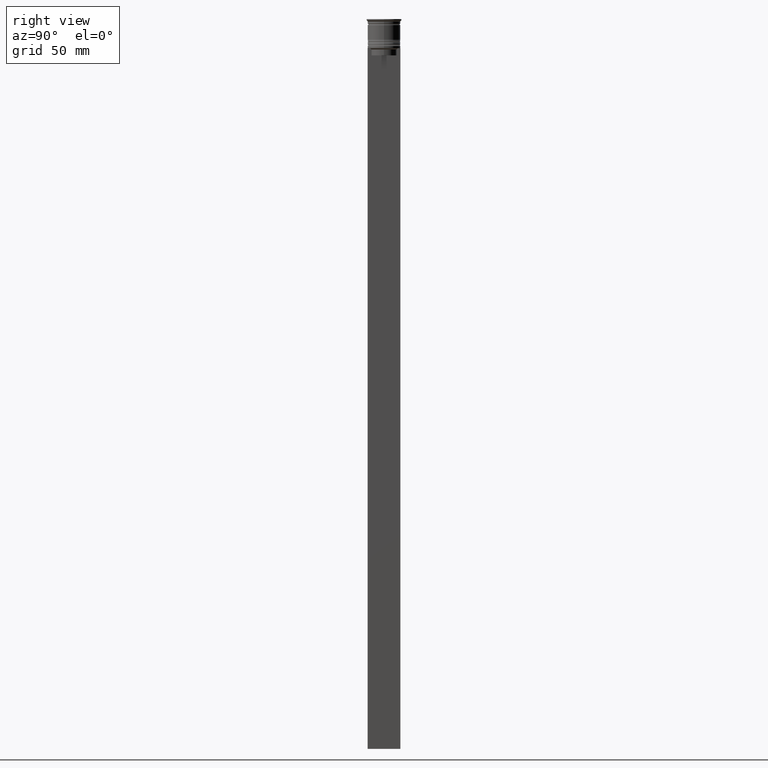
[diagram: clean part render]
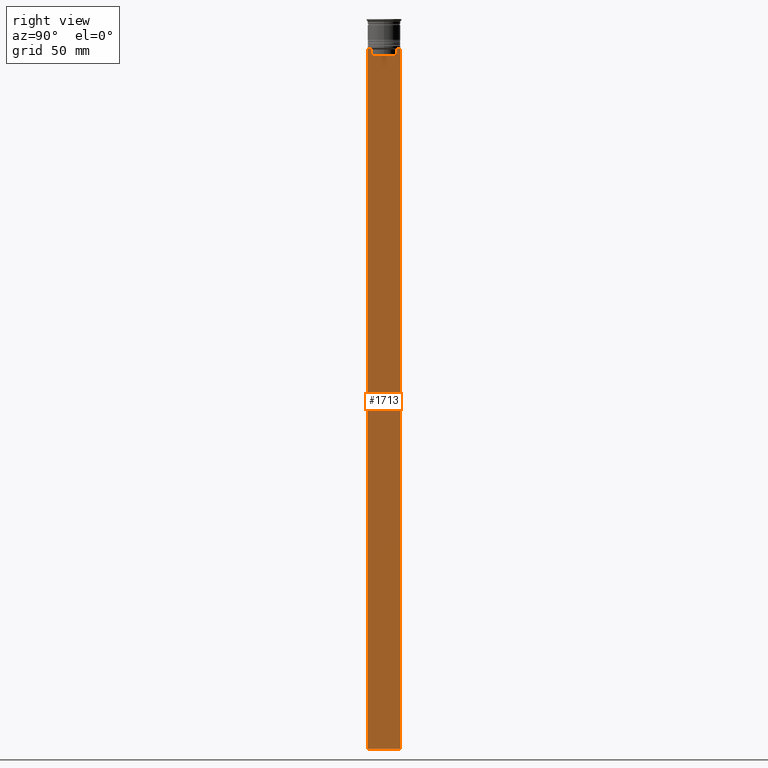
[diagram: same view with one face highlighted and labeled with its STEP entity id]
A machine part, right view. The second image highlights one B-rep face of the part: STEP entity #1713.
In plain terms, the highlighted planar face has unit normal (-1, 0, 0).
Its self-contained STEP definition (entity closure, byte-faithful):
#8 = EDGE_CURVE ( 'NONE', #275, #545, #1284, .T. ) ;
#13 = VECTOR ( 'NONE', #2017, 1000.000000000000000 ) ;
#97 = EDGE_LOOP ( 'NONE', ( #139, #2367, #1244, #529, #1843, #1959, #883, #535, #152, #282, #1002, #789 ) ) ;
#117 = DIRECTION ( 'NONE',  ( -1.000000000000000000, 0.000000000000000000, 0.000000000000000000 ) ) ;
#123 = DIRECTION ( 'NONE',  ( 0.000000000000000000, 0.000000000000000000, -1.000000000000000000 ) ) ;
#139 = ORIENTED_EDGE ( 'NONE', *, *, #1006, .T. ) ;
#148 = LINE ( 'NONE', #2223, #13 ) ;
#152 = ORIENTED_EDGE ( 'NONE', *, *, #504, .T. ) ;
#176 = LINE ( 'NONE', #1281, #345 ) ;
#187 = CARTESIAN_POINT ( 'NONE',  ( 0.5000000000000000000, -6.999999999999997335, -12.50000000000000000 ) ) ;
#197 = CARTESIAN_POINT ( 'NONE',  ( 0.5000000000000000000, -6.999999999999997335, -12.50000000000000000 ) ) ;
#222 = DIRECTION ( 'NONE',  ( 0.000000000000000000, -1.000000000000000000, 0.000000000000000000 ) ) ;
#230 = VERTEX_POINT ( 'NONE', #996 ) ;
#275 = VERTEX_POINT ( 'NONE', #1398 ) ;
#282 = ORIENTED_EDGE ( 'NONE', *, *, #1527, .T. ) ;
#345 = VECTOR ( 'NONE', #2247, 1000.000000000000000 ) ;
#355 = DIRECTION ( 'NONE',  ( 0.000000000000000000, -1.000000000000000000, 0.000000000000000000 ) ) ;
#482 = EDGE_CURVE ( 'NONE', #2055, #2200, #148, .T. ) ;
#497 = CARTESIAN_POINT ( 'NONE',  ( 0.5000000000000000000, 5.376802023508029826, 0.000000000000000000 ) ) ;
#504 = EDGE_CURVE ( 'NONE', #1763, #1091, #2240, .T. ) ;
#529 = ORIENTED_EDGE ( 'NONE', *, *, #574, .T. ) ;
#535 = ORIENTED_EDGE ( 'NONE', *, *, #1765, .T. ) ;
#545 = VERTEX_POINT ( 'NONE', #903 ) ;
#574 = EDGE_CURVE ( 'NONE', #545, #1770, #2417, .T. ) ;
#577 = CARTESIAN_POINT ( 'NONE',  ( 0.5000000000000000000, -5.878775382679629402, -12.50000000000000000 ) ) ;
#637 = DIRECTION ( 'NONE',  ( 0.000000000000000000, -1.000000000000000000, 0.000000000000000000 ) ) ;
#683 = CARTESIAN_POINT ( 'NONE',  ( 0.5000000000000000000, -6.999999999999997335, -312.5000000000000000 ) ) ;
#778 = LINE ( 'NONE', #197, #2478 ) ;
#786 = LINE ( 'NONE', #1744, #2034 ) ;
#789 = ORIENTED_EDGE ( 'NONE', *, *, #482, .T. ) ;
#850 = EDGE_CURVE ( 'NONE', #230, #275, #2285, .T. ) ;
#877 = DIRECTION ( 'NONE',  ( 0.000000000000000000, 0.000000000000000000, -1.000000000000000000 ) ) ;
#883 = ORIENTED_EDGE ( 'NONE', *, *, #1292, .T. ) ;
#903 = CARTESIAN_POINT ( 'NONE',  ( 0.5000000000000000000, 5.376802023508029826, -15.50000000000000000 ) ) ;
#931 = CARTESIAN_POINT ( 'NONE',  ( 0.5000000000000000000, -5.376802023508029826, 0.000000000000000000 ) ) ;
#968 = CARTESIAN_POINT ( 'NONE',  ( 0.5000000000000000000, -6.881860213634102053, -12.50000000000000000 ) ) ;
#996 = CARTESIAN_POINT ( 'NONE',  ( 0.5000000000000000000, 5.878775382679629402, -12.50000000000000000 ) ) ;
#999 = CARTESIAN_POINT ( 'NONE',  ( 0.5000000000000000000, 5.711478846560141598, -12.66669470477064685 ) ) ;
#1002 = ORIENTED_EDGE ( 'NONE', *, *, #1913, .F. ) ;
#1006 = EDGE_CURVE ( 'NONE', #2200, #230, #1403, .T. ) ;
#1032 = LINE ( 'NONE', #1631, #1383 ) ;
#1091 = VERTEX_POINT ( 'NONE', #683 ) ;
#1095 = PLANE ( 'NONE',  #1987 ) ;
#1107 = VECTOR ( 'NONE', #637, 1000.000000000000000 ) ;
#1109 = DIRECTION ( 'NONE',  ( 0.000000000000000000, 0.000000000000000000, 1.000000000000000000 ) ) ;
#1178 = VECTOR ( 'NONE', #877, 1000.000000000000000 ) ;
#1213 = CARTESIAN_POINT ( 'NONE',  ( 0.5000000000000000000, 5.376802023508029826, -13.00000000000000178 ) ) ;
#1244 = ORIENTED_EDGE ( 'NONE', *, *, #8, .T. ) ;
#1281 = CARTESIAN_POINT ( 'NONE',  ( 0.5000000000000000000, -6.999999999999997335, -12.50000000000000000 ) ) ;
#1284 = LINE ( 'NONE', #497, #1178 ) ;
#1288 = CARTESIAN_POINT ( 'NONE',  ( 0.5000000000000000000, 5.400000000000003908, -15.50000000000000000 ) ) ;
#1290 = CARTESIAN_POINT ( 'NONE',  ( 0.5000000000000000000, -6.999999999999997335, 1.535668847618198329 ) ) ;
#1292 = EDGE_CURVE ( 'NONE', #1809, #1961, #176, .T. ) ;
#1322 = FACE_OUTER_BOUND ( 'NONE', #97, .T. ) ;
#1332 = DIRECTION ( 'NONE',  ( 0.000000000000000000, 0.000000000000000000, -1.000000000000000000 ) ) ;
#1383 = VECTOR ( 'NONE', #2368, 1000.000000000000000 ) ;
#1398 = CARTESIAN_POINT ( 'NONE',  ( 0.5000000000000000000, 5.376802023508029826, -13.00000000000000178 ) ) ;
#1403 = LINE ( 'NONE', #2365, #1107 ) ;
#1488 = DIRECTION ( 'NONE',  ( -0.000000000000000000, -0.000000000000000000, 1.000000000000000000 ) ) ;
#1503 = VECTOR ( 'NONE', #355, 1000.000000000000000 ) ;
#1527 = EDGE_CURVE ( 'NONE', #1091, #1847, #1032, .T. ) ;
#1553 = CARTESIAN_POINT ( 'NONE',  ( 0.5000000000000000000, -5.376802023508029826, -13.00000000000000178 ) ) ;
#1631 = CARTESIAN_POINT ( 'NONE',  ( 0.5000000000000000000, -6.999999999999997335, -312.5000000000000000 ) ) ;
#1660 = VECTOR ( 'NONE', #123, 1000.000000000000000 ) ;
#1664 = EDGE_CURVE ( 'NONE', #1770, #1804, #2077, .T. ) ;
#1707 = CARTESIAN_POINT ( 'NONE',  ( 0.5000000000000000000, 7.000000000000002665, -312.5000000000000000 ) ) ;
#1713 = ADVANCED_FACE ( 'NONE', ( #1322 ), #1095, .F. ) ;
#1744 = CARTESIAN_POINT ( 'NONE',  ( 0.5000000000000000000, 7.000000000000002665, 1.535668847618198329 ) ) ;
#1751 = CARTESIAN_POINT ( 'NONE',  ( 0.5000000000000000000, -5.376802023508029826, -15.50000000000000000 ) ) ;
#1763 = VERTEX_POINT ( 'NONE', #187 ) ;
#1765 = EDGE_CURVE ( 'NONE', #1961, #1763, #778, .T. ) ;
#1770 = VERTEX_POINT ( 'NONE', #1751 ) ;
#1798 = EDGE_CURVE ( 'NONE', #1804, #1809, #1863, .T. ) ;
#1804 = VERTEX_POINT ( 'NONE', #1553 ) ;
#1809 = VERTEX_POINT ( 'NONE', #577 ) ;
#1810 = CARTESIAN_POINT ( 'NONE',  ( 0.5000000000000000000, -6.999999999999997335, 1.535668847618198329 ) ) ;
#1843 = ORIENTED_EDGE ( 'NONE', *, *, #1664, .T. ) ;
#1847 = VERTEX_POINT ( 'NONE', #1707 ) ;
#1863 = B_SPLINE_CURVE_WITH_KNOTS ( 'NONE', 3,
 ( #1945, #2301, #2326, #2088 ),
 .UNSPECIFIED., .F., .F.,
 ( 4, 4 ),
 ( 0.02539176325380714666, 0.02610162431828674801 ),
 .UNSPECIFIED. ) ;
#1871 = CARTESIAN_POINT ( 'NONE',  ( 0.5000000000000000000, 7.000000000000002665, -12.50000000000000000 ) ) ;
#1913 = EDGE_CURVE ( 'NONE', #2055, #1847, #786, .T. ) ;
#1945 = CARTESIAN_POINT ( 'NONE',  ( 0.5000000000000000000, -5.376802023508029826, -13.00000000000000178 ) ) ;
#1959 = ORIENTED_EDGE ( 'NONE', *, *, #1798, .T. ) ;
#1961 = VERTEX_POINT ( 'NONE', #968 ) ;
#1967 = CARTESIAN_POINT ( 'NONE',  ( 0.5000000000000000000, 5.878775382679629402, -12.50000000000000000 ) ) ;
#1987 = AXIS2_PLACEMENT_3D ( 'NONE', #1290, #117, #1109 ) ;
#2017 = DIRECTION ( 'NONE',  ( 0.000000000000000000, -1.000000000000000000, 0.000000000000000000 ) ) ;
#2034 = VECTOR ( 'NONE', #1332, 1000.000000000000000 ) ;
#2055 = VERTEX_POINT ( 'NONE', #1871 ) ;
#2077 = LINE ( 'NONE', #931, #2112 ) ;
#2088 = CARTESIAN_POINT ( 'NONE',  ( 0.5000000000000000000, -5.878775382679629402, -12.50000000000000000 ) ) ;
#2112 = VECTOR ( 'NONE', #1488, 1000.000000000000000 ) ;
#2120 = CARTESIAN_POINT ( 'NONE',  ( 0.5000000000000000000, 6.881860213634102053, -12.50000000000000000 ) ) ;
#2143 = CARTESIAN_POINT ( 'NONE',  ( 0.5000000000000000000, 5.544156989057553275, -12.83336397825725861 ) ) ;
#2200 = VERTEX_POINT ( 'NONE', #2120 ) ;
#2223 = CARTESIAN_POINT ( 'NONE',  ( 0.5000000000000000000, -6.999999999999997335, -12.50000000000000000 ) ) ;
#2240 = LINE ( 'NONE', #1810, #1660 ) ;
#2247 = DIRECTION ( 'NONE',  ( 0.000000000000000000, -1.000000000000000000, 0.000000000000000000 ) ) ;
#2285 = B_SPLINE_CURVE_WITH_KNOTS ( 'NONE', 3,
 ( #1967, #999, #2143, #1213 ),
 .UNSPECIFIED., .F., .F.,
 ( 4, 4 ),
 ( 0.01003009312103698807, 0.01073859663834952557 ),
 .UNSPECIFIED. ) ;
#2301 = CARTESIAN_POINT ( 'NONE',  ( 0.5000000000000000000, -5.544156999454441959, -12.83336396790503642 ) ) ;
#2326 = CARTESIAN_POINT ( 'NONE',  ( 0.5000000000000000000, -5.711478856069293286, -12.66669469529570335 ) ) ;
#2365 = CARTESIAN_POINT ( 'NONE',  ( 0.5000000000000000000, -6.999999999999997335, -12.50000000000000000 ) ) ;
#2367 = ORIENTED_EDGE ( 'NONE', *, *, #850, .T. ) ;
#2368 = DIRECTION ( 'NONE',  ( 0.000000000000000000, 1.000000000000000000, 0.000000000000000000 ) ) ;
#2417 = LINE ( 'NONE', #1288, #1503 ) ;
#2478 = VECTOR ( 'NONE', #222, 1000.000000000000000 ) ;